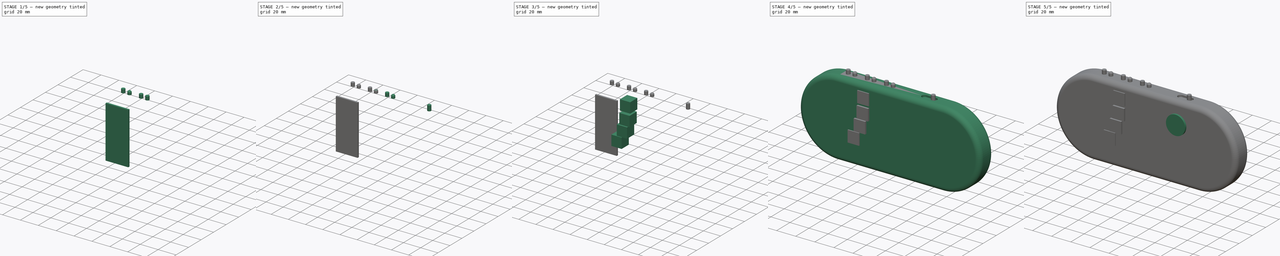
[diagram: build sequence overview — one tinted view per stage of 5, left to right]
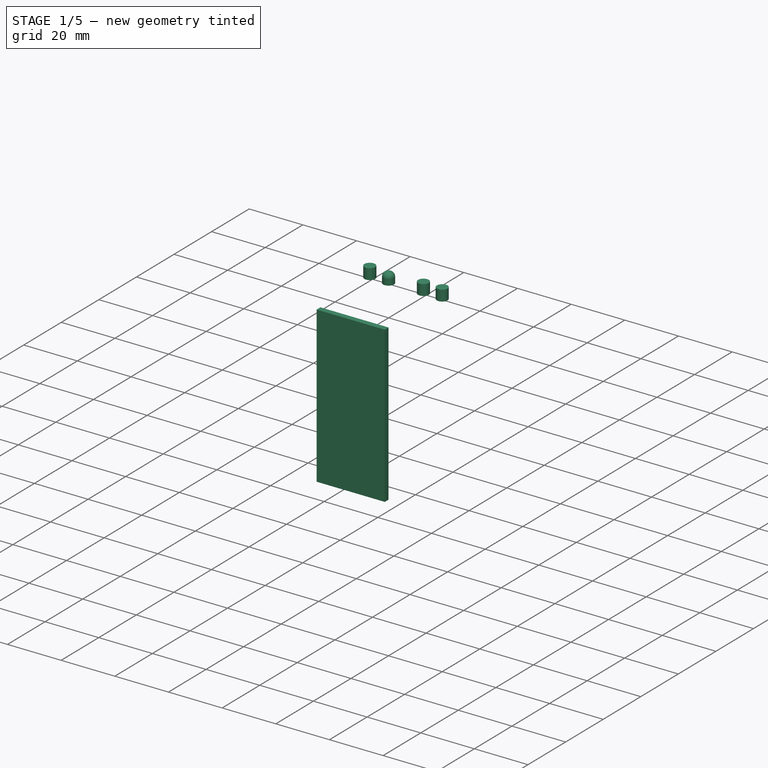
[diagram: stage 1 of 5 — iso view after this stage's code; geometry added in this stage tinted green]
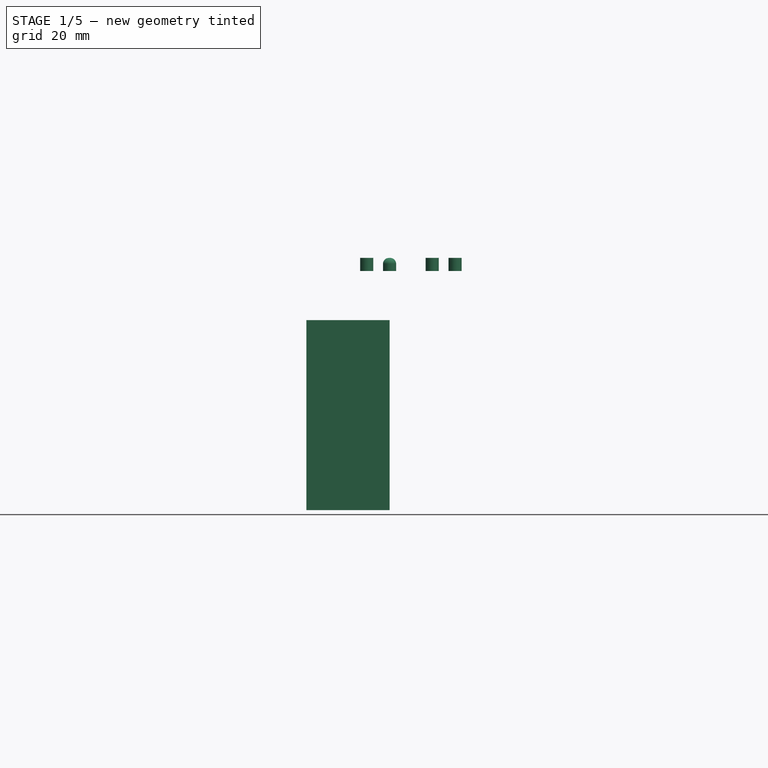
[diagram: stage 1 of 5 — front view after this stage's code; geometry added in this stage tinted green]
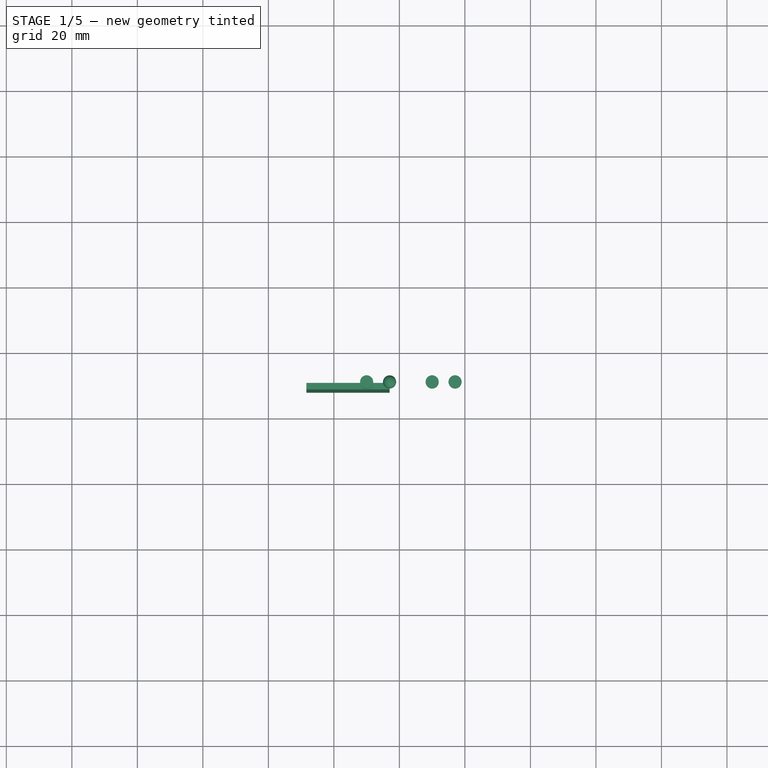
[diagram: stage 1 of 5 — top view after this stage's code; geometry added in this stage tinted green]
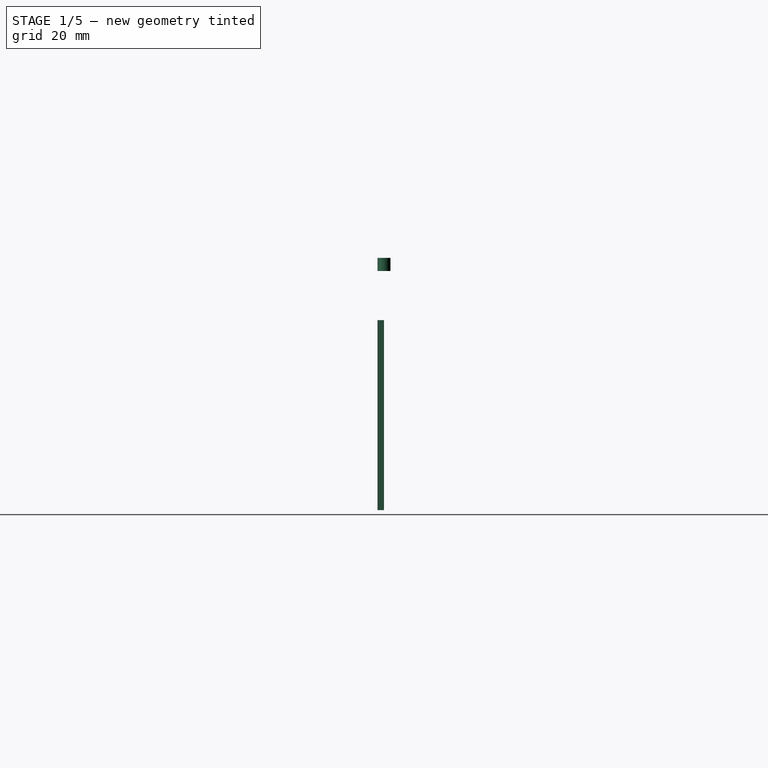
[diagram: stage 1 of 5 — right view after this stage's code; geometry added in this stage tinted green]
FCSTD DOCUMENT  (FreeCAD 0.16R6712 (Git))
Label: voctoplay 0.4
License: CreativeCommons Attribution
LicenseURL: http://creativecommons.org/licenses/by/4.0/
objects: Part::Box×13, Part::Cylinder×8, Part::MultiFuse×7, Part::Fillet×4, Sketcher::SketchObject×2, Part::Extrusion×1, PartDesign::Pocket×1
note: 37 computed .brp shape members not serialized (recipe doc carries the construction recipe); baked Part::Feature solids carry a one-line shape summary decoded from their .brp

FEATURE [Part::Cylinder] Cylinder007  label="Zylinder006"
  Angle = 360
  Height = 4
  Placement = pos=(-23,10,40) rot=(0,0,1;0rad)
  Radius = 2
FEATURE [Part::Cylinder] Cylinder008  label="Zylinder007"
  Angle = 360
  Height = 4
  Placement = pos=(-30,10,40) rot=(0,0,1;0rad)
  Radius = 2
FEATURE [Part::Cylinder] Cylinder009  label="Zylinder008"
  Angle = 360
  Height = 4
  Placement = pos=(-23,10,40) rot=(0,0,1;0rad)
  Radius = 2
FEATURE [Part::Fillet] Fillet005
  Base = -> Cylinder009
  Edges = 1 edges r=1.8: [Edge1]
FEATURE [Part::Cylinder] Cylinder010  label="Zylinder009"
  Angle = 360
  Height = 4
  Placement = pos=(-30,10,40) rot=(0,0,1;0rad)
  Radius = 2
FEATURE [Part::MultiFuse] Fusion004
  Placement = pos=(-20,0,0) rot=(0,0,1;0rad)
  Shapes = -> [Cylinder010,Fillet005]
FEATURE [Part::Box] Box013  label="LOLIN032"
  Height = 58
  Length = 25.4
  Placement = pos=(-68.4,8,-33) rot=(0,0,1;0rad)
  Width = 2
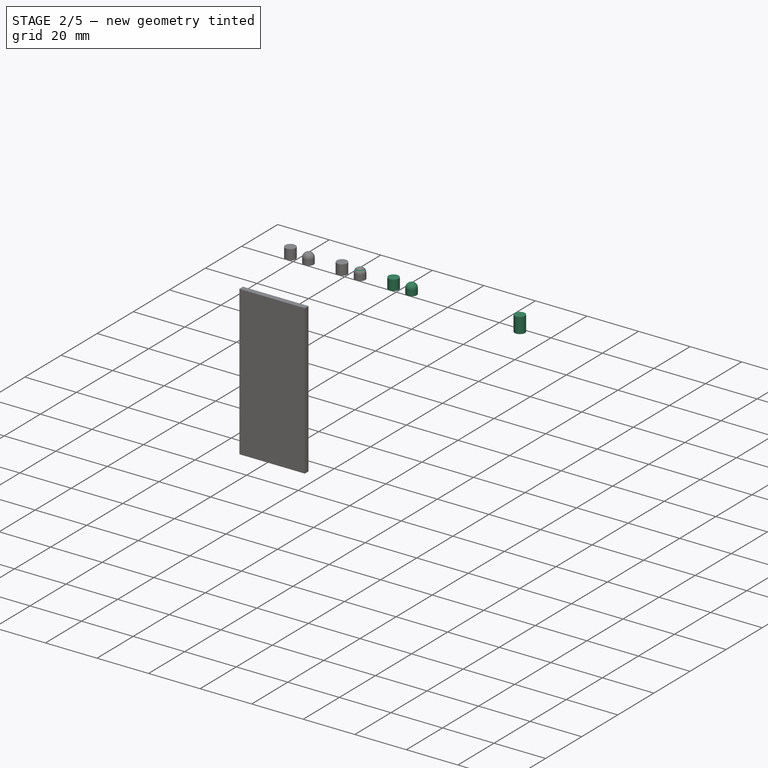
[diagram: stage 2 of 5 — iso view after this stage's code; geometry added in this stage tinted green]
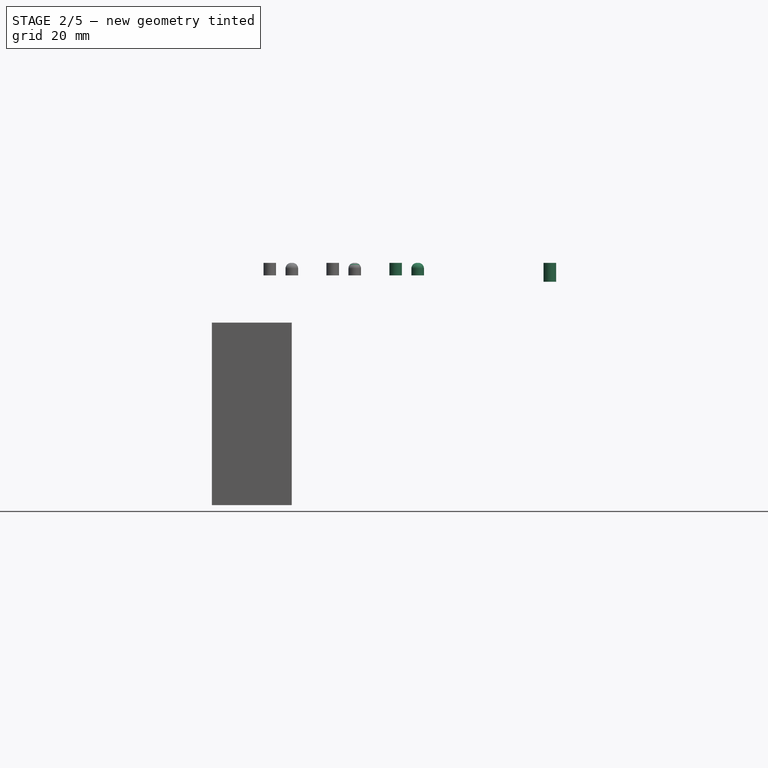
[diagram: stage 2 of 5 — front view after this stage's code; geometry added in this stage tinted green]
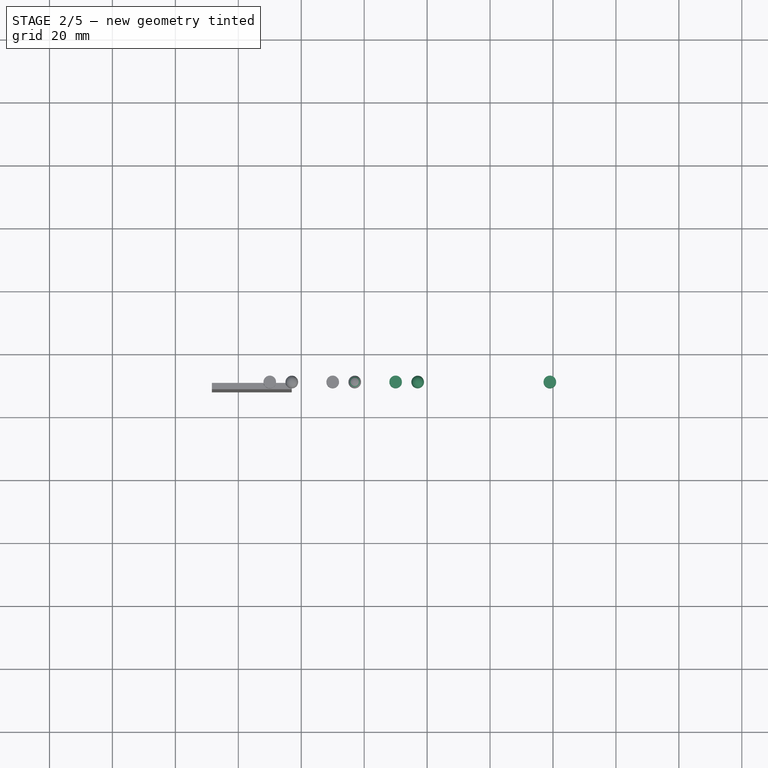
[diagram: stage 2 of 5 — top view after this stage's code; geometry added in this stage tinted green]
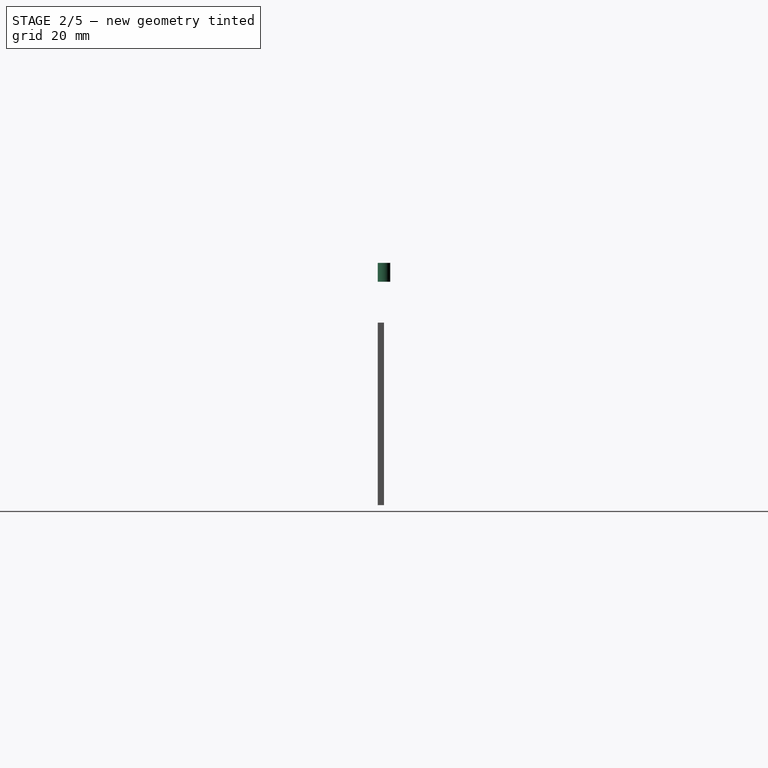
[diagram: stage 2 of 5 — right view after this stage's code; geometry added in this stage tinted green]
FEATURE [Part::Cylinder] Cylinder001  label="Zylinder"
  Angle = 360
  Height = 6
  Placement = pos=(39,10,38) rot=(0,0,1;0rad)
  Radius = 2
FEATURE [Part::Cylinder] Cylinder002  label="Zylinder001"
  Angle = 360
  Height = 4
  Placement = pos=(-23,10,40) rot=(0,0,1;0rad)
  Radius = 2
FEATURE [Part::Fillet] Fillet
  Base = -> Cylinder002
  Edges = 1 edges r=1.8: [Edge1]
FEATURE [Part::Cylinder] Cylinder006  label="Zylinder005"
  Angle = 360
  Height = 4
  Placement = pos=(-30,10,40) rot=(0,0,1;0rad)
  Radius = 2
FEATURE [Part::MultiFuse] Fusion002
  Shapes = -> [Cylinder006,Fillet]
FEATURE [Part::Fillet] Fillet004
  Base = -> Cylinder007
  Edges = 1 edges r=1.8: [Edge1]
FEATURE [Part::MultiFuse] Fusion003
  Placement = pos=(20,0,0) rot=(0,0,1;0rad)
  Shapes = -> [Cylinder008,Fillet004]
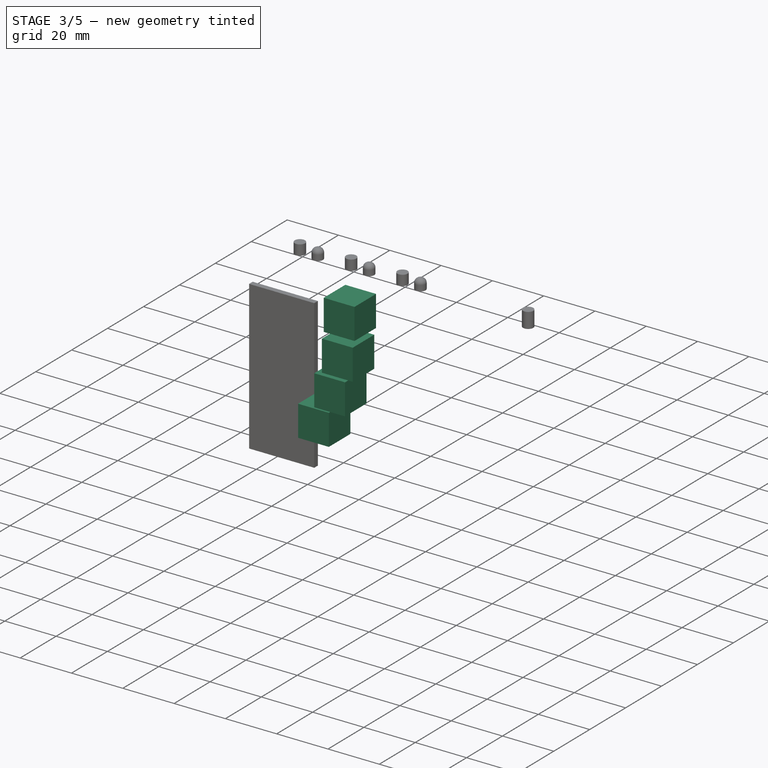
[diagram: stage 3 of 5 — iso view after this stage's code; geometry added in this stage tinted green]
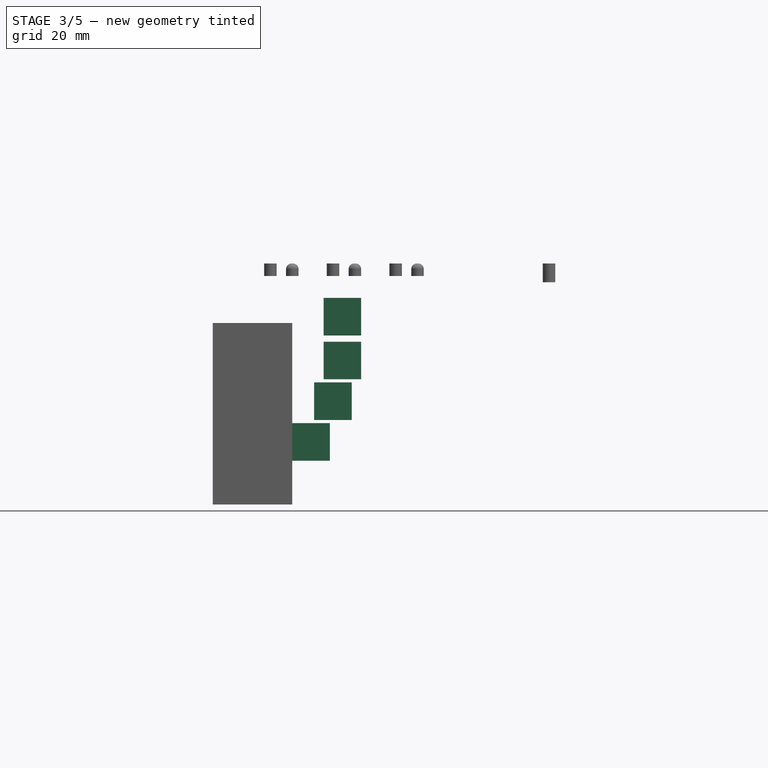
[diagram: stage 3 of 5 — front view after this stage's code; geometry added in this stage tinted green]
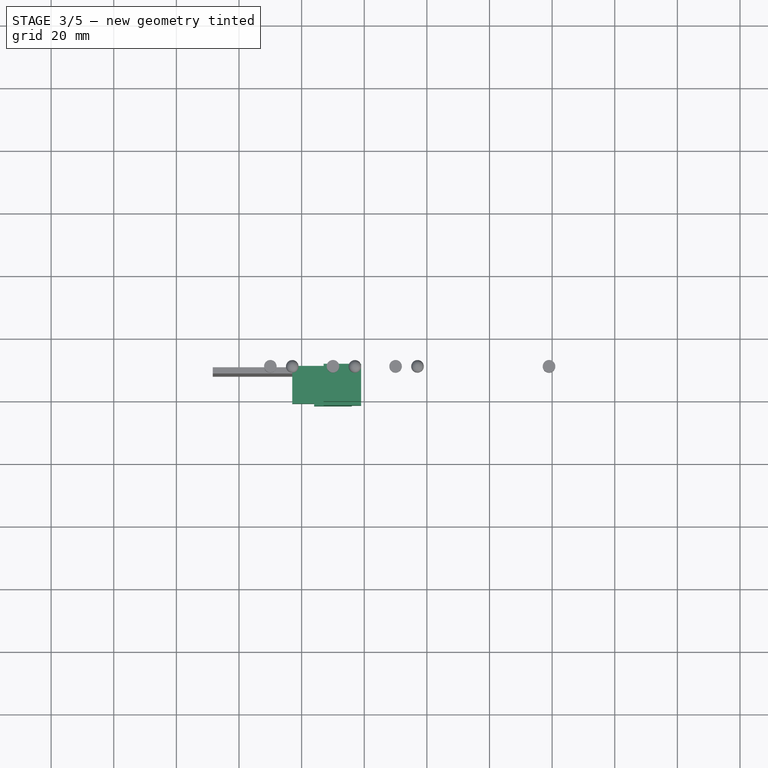
[diagram: stage 3 of 5 — top view after this stage's code; geometry added in this stage tinted green]
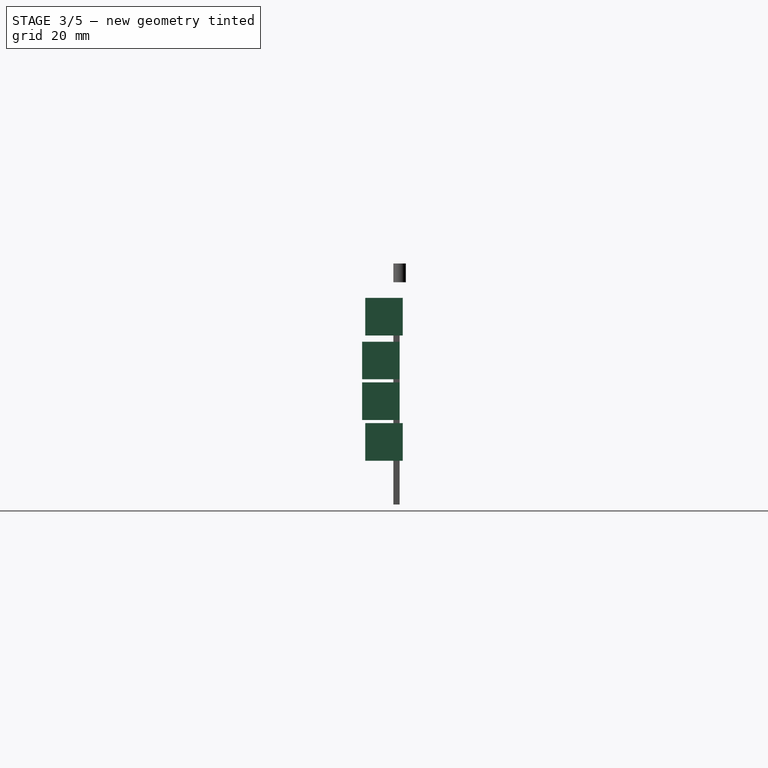
[diagram: stage 3 of 5 — right view after this stage's code; geometry added in this stage tinted green]
FEATURE [Part::Box] Box008  label="Würfel008"
  Height = 12
  Length = 12
  Placement = pos=(-33,-1,21) rot=(0,0,1;0rad)
  Width = 12
FEATURE [Part::Box] Box009  label="Würfel009"
  Height = 12
  Length = 12
  Placement = pos=(-33,-2,7) rot=(0,0,1;0rad)
  Width = 12
FEATURE [Part::Box] Box010  label="Würfel010"
  Height = 12
  Length = 12
  Placement = pos=(-36,-2,-6) rot=(0,0,1;0rad)
  Width = 12
FEATURE [Part::Box] Box011  label="Würfel011"
  Height = 12
  Length = 12
  Placement = pos=(-43,-1,-19) rot=(0,0,1;0rad)
  Width = 12
FEATURE [Part::MultiFuse] Fusion  label=" Fusion Composition Modes"
  Shapes = -> [Box011,Box008,Box009,Box010]
FEATURE [Part::MultiFuse] Fusion005  label="Fusion Controlls oben"
  Shapes = -> [Cylinder001,Fusion004,Fusion003,Fusion002]
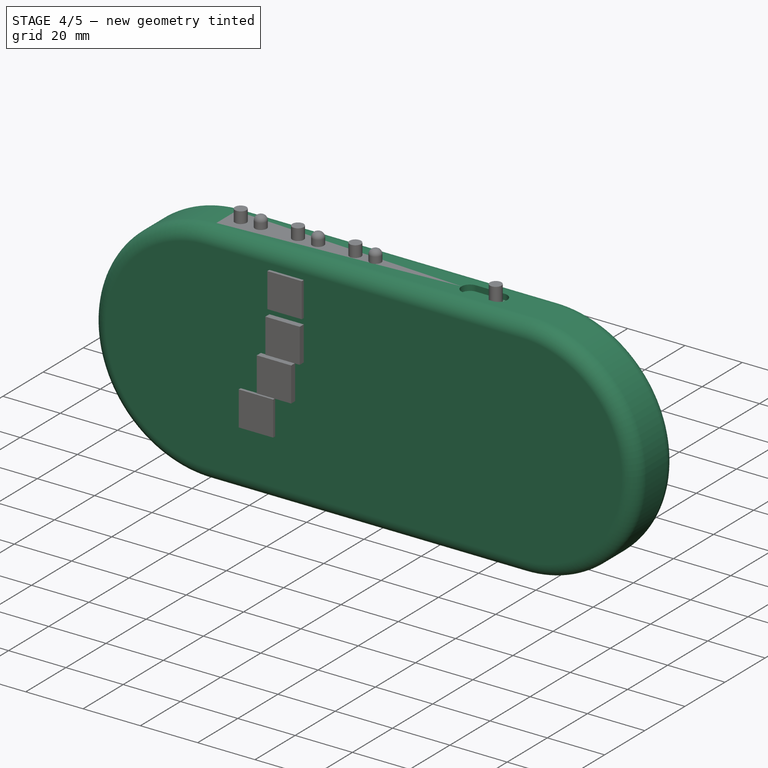
[diagram: stage 4 of 5 — iso view after this stage's code; geometry added in this stage tinted green]
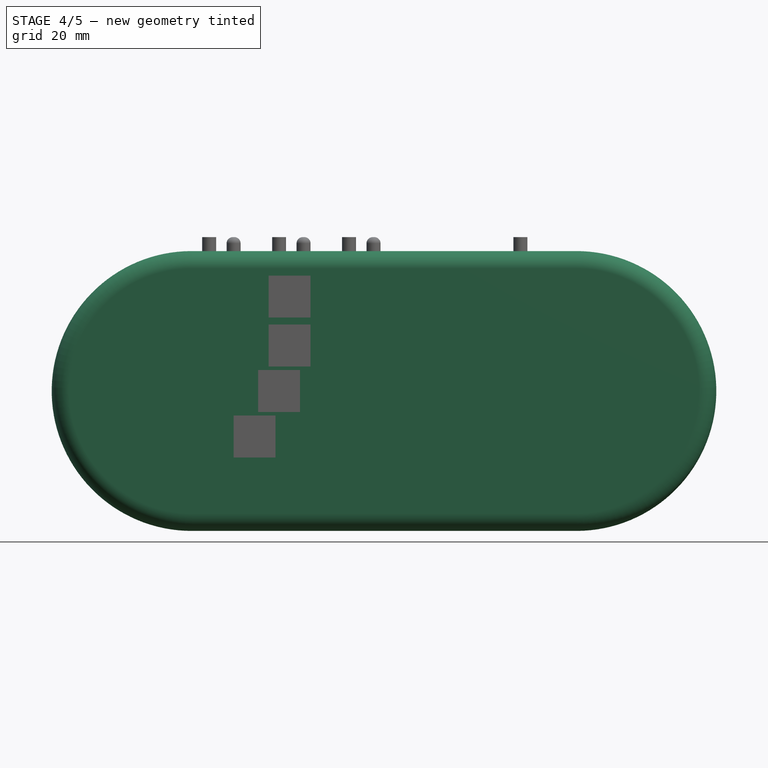
[diagram: stage 4 of 5 — front view after this stage's code; geometry added in this stage tinted green]
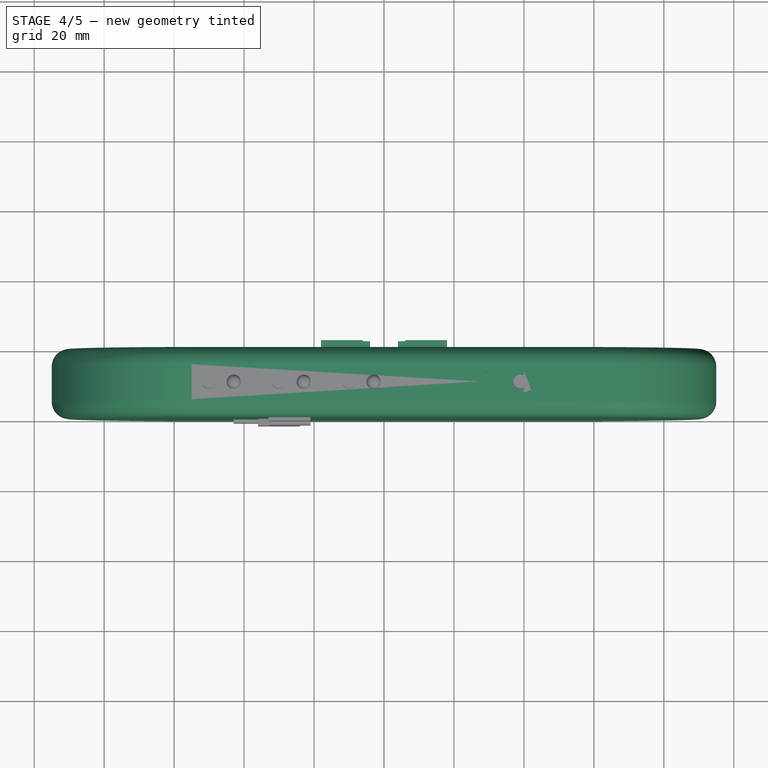
[diagram: stage 4 of 5 — top view after this stage's code; geometry added in this stage tinted green]
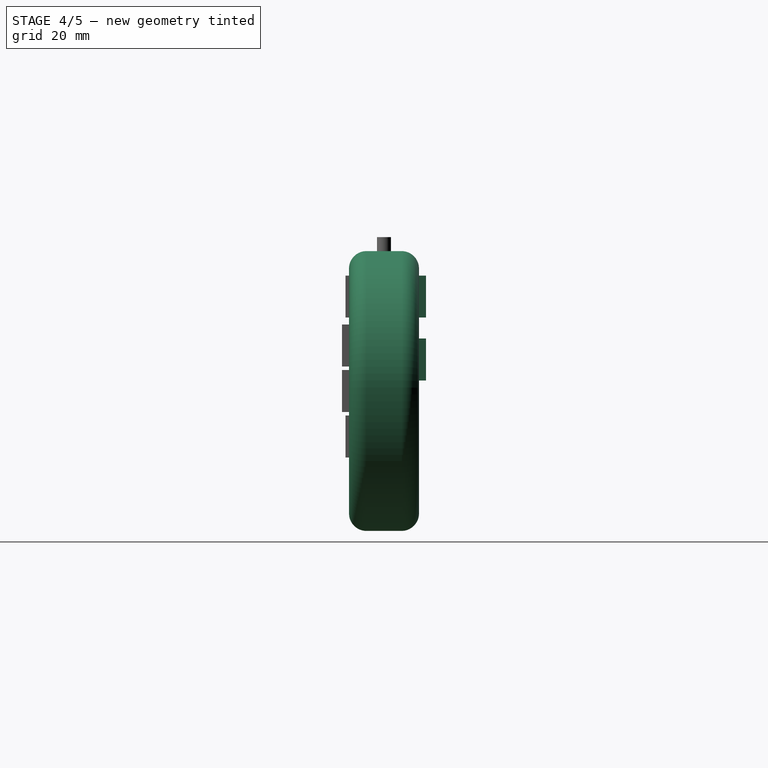
[diagram: stage 4 of 5 — right view after this stage's code; geometry added in this stage tinted green]
FEATURE [Sketcher::SketchObject] Sketch
  Placement = pos=(0,0,0) rot=(1,0,0;1.5708rad)
  sketch-geometry (4):
    g0: ArcOfCircle CenterX=-55 CenterY=0 CenterZ=0 NormalX=0 NormalY=0 NormalZ=1 Radius=40 StartAngle=1.5708 EndAngle=4.71239
    g1: ArcOfCircle CenterX=55 CenterY=0 CenterZ=0 NormalX=0 NormalY=0 NormalZ=1 Radius=40 StartAngle=4.71239 EndAngle=7.85398
    g2: LineSegment StartX=-55 StartY=-40 StartZ=0 EndX=55 EndY=-40 EndZ=0
    g3: LineSegment StartX=-55 StartY=40 StartZ=0 EndX=55 EndY=40 EndZ=0
  constraints (10):
    c: Tangent(g0,g3) = 1.5708
    c: Tangent(g0,g2) = -1.5708
    c: Tangent(g2,g1) = -1.5708
    c: Tangent(g3,g1) = 1.5708
    c: Horizontal(g2)
    c: Equal(g0,g1)
    c: PointOnObject(g0,g-1)
    c: Radius(g0) = 40
    c: DistanceX(g3,g3) = 110
    c: Symmetric(g1,g0,g-2)
FEATURE [Part::Extrusion] Extrude
  Base = -> Sketch
  Dir = (0,20,0)
  Solid = true
FEATURE [Part::Box] Box004  label="Würfel004"
  Height = 12
  Length = 12
  Placement = pos=(6,10,21) rot=(0,0,1;0rad)
  Width = 12
FEATURE [Part::Box] Box005  label="Würfel005"
  Height = 12
  Length = 12
  Placement = pos=(4,10,3) rot=(0,0,1;0rad)
  Width = 12
FEATURE [Part::Box] Box006  label="Würfel006"
  Height = 12
  Length = 12
  Placement = pos=(-16,10,3) rot=(0,0,1;0rad)
  Width = 12
FEATURE [Part::Box] Box007  label="Würfel007"
  Height = 12
  Length = 12
  Placement = pos=(-18,10,21) rot=(0,0,1;0rad)
  Width = 12
FEATURE [Sketcher::SketchObject] Sketch001
  Placement = pos=(0,0,40) rot=(0,0,1;0rad)
  Support = -> Extrude [Face4]
  sketch-geometry (4):
    g0: ArcOfCircle CenterX=30 CenterY=10 CenterZ=0 NormalX=0 NormalY=0 NormalZ=1 Radius=3 StartAngle=1.5708 EndAngle=4.71239
    g1: ArcOfCircle CenterX=40 CenterY=10 CenterZ=0 NormalX=0 NormalY=0 NormalZ=1 Radius=3 StartAngle=4.71239 EndAngle=7.85398
    g2: LineSegment StartX=30 StartY=7 StartZ=0 EndX=40 EndY=7 EndZ=0
    g3: LineSegment StartX=30 StartY=13 StartZ=0 EndX=40 EndY=13 EndZ=0
  constraints (10):
    c: Tangent(g0,g3) = 1.5708
    c: Tangent(g0,g2) = -1.5708
    c: Tangent(g2,g1) = -1.5708
    c: Tangent(g3,g1) = 1.5708
    c: Horizontal(g2)
    c: Equal(g0,g1)
    c: DistanceY(g-1,g1) = 10
    c: DistanceX(g3,g3) = 10
    c: Radius(g1) = 3
    c: DistanceX(g1,g-1) = -40
FEATURE [PartDesign::Pocket] Pocket
  Length = 2
  Sketch = -> Sketch001
  Type = 0
FEATURE [Part::Fillet] Fillet003  label="Fillet case"
  Base = -> Pocket
  Edges = 8 edges r=5: [Edge3,Edge4,Edge5,Edge6,Edge13,Edge14,Edge15,Edge16]
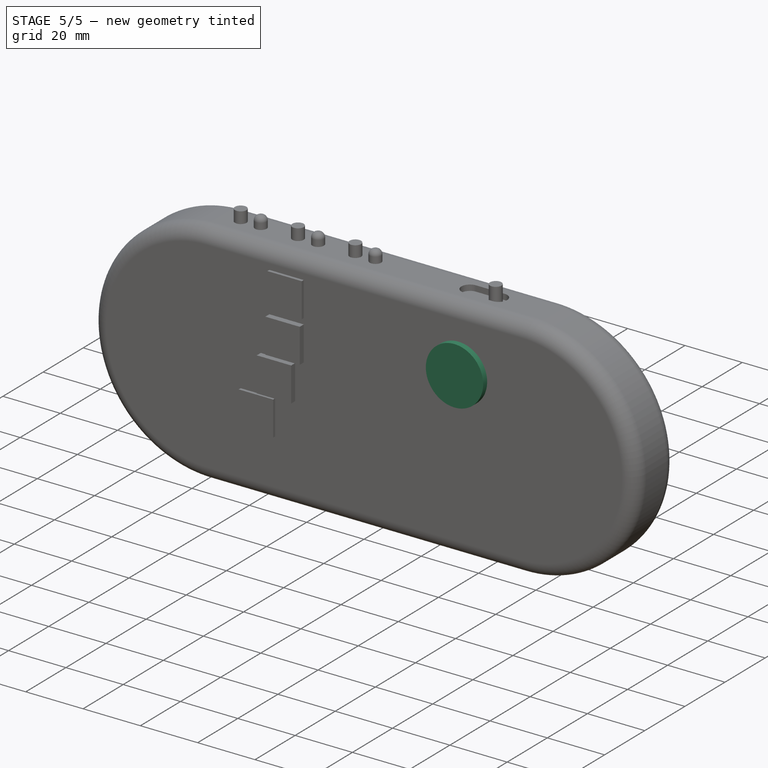
[diagram: stage 5 of 5 — iso view after this stage's code; geometry added in this stage tinted green]
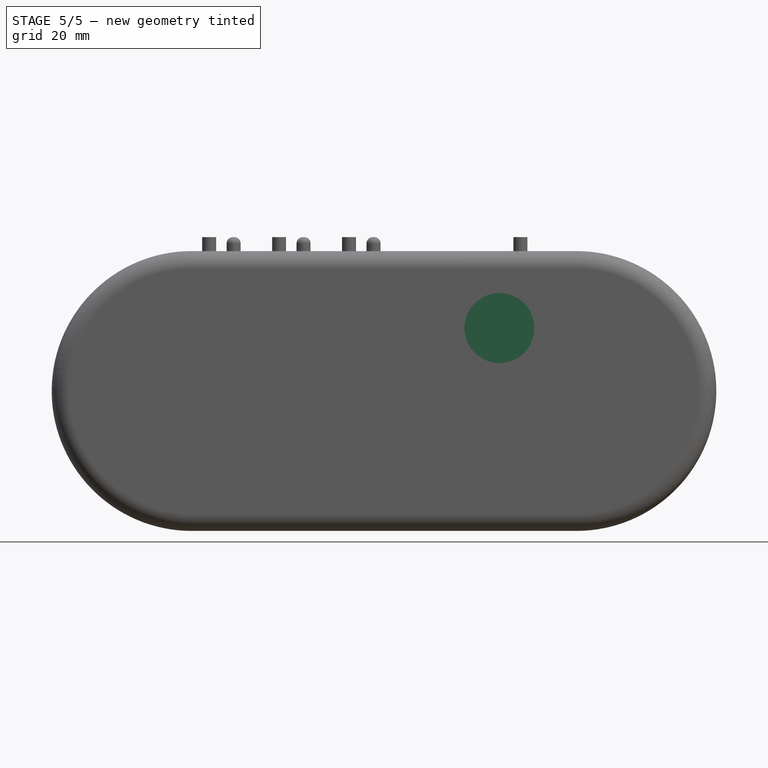
[diagram: stage 5 of 5 — front view after this stage's code; geometry added in this stage tinted green]
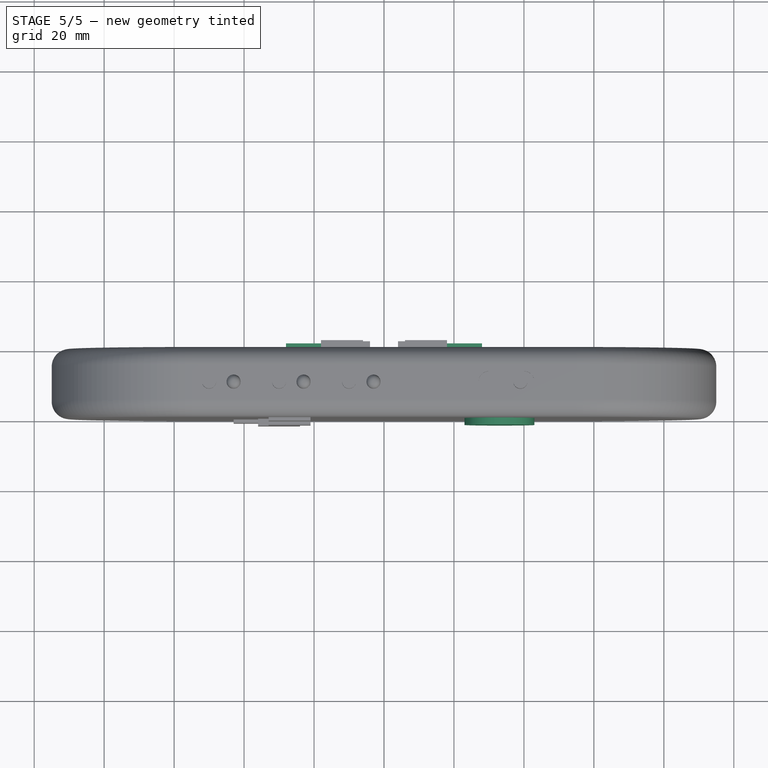
[diagram: stage 5 of 5 — top view after this stage's code; geometry added in this stage tinted green]
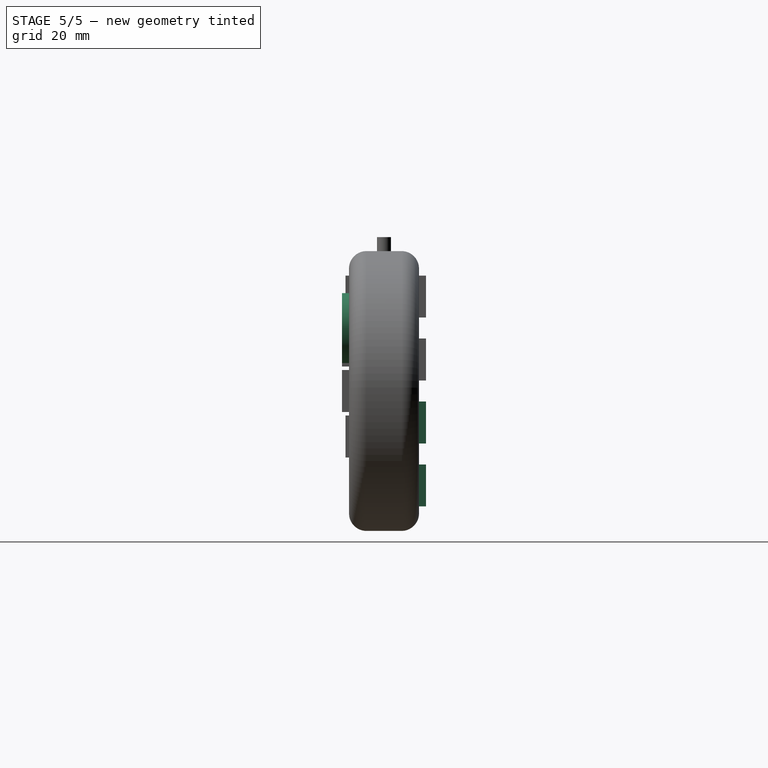
[diagram: stage 5 of 5 — right view after this stage's code; geometry added in this stage tinted green]
FEATURE [Part::Box] Box  label="Würfel"
  Height = 12
  Length = 12
  Placement = pos=(16,10,-33) rot=(0,0,1;0rad)
  Width = 12
FEATURE [Part::Box] Box001  label="Würfel001"
  Height = 12
  Length = 12
  Placement = pos=(6,10,-15) rot=(0,0,1;0rad)
  Width = 12
FEATURE [Part::Box] Box002  label="Würfel002"
  Height = 12
  Length = 12
  Placement = pos=(-28,10,-33) rot=(0,0,1;0rad)
  Width = 12
FEATURE [Part::Box] Box003  label="Würfel003"
  Height = 12
  Length = 12
  Placement = pos=(-18,10,-15) rot=(0,0,1;0rad)
  Width = 12
FEATURE [Part::Cylinder] Cylinder  label=" Zylinder Take"
  Angle = 360
  Height = 10
  Placement = pos=(33,8,18) rot=(1,0,0;1.5708rad)
  Radius = 10
FEATURE [Part::MultiFuse] Fusion001  label="Fusion Fingers"
  Shapes = -> [Box006,Box001,Box002,Box,Box007,Box004,Box005,Box003]
FEATURE [Part::MultiFuse] Fusion006
  Shapes = -> [Cylinder,Fusion005,Fillet003,Fusion,Fusion001]
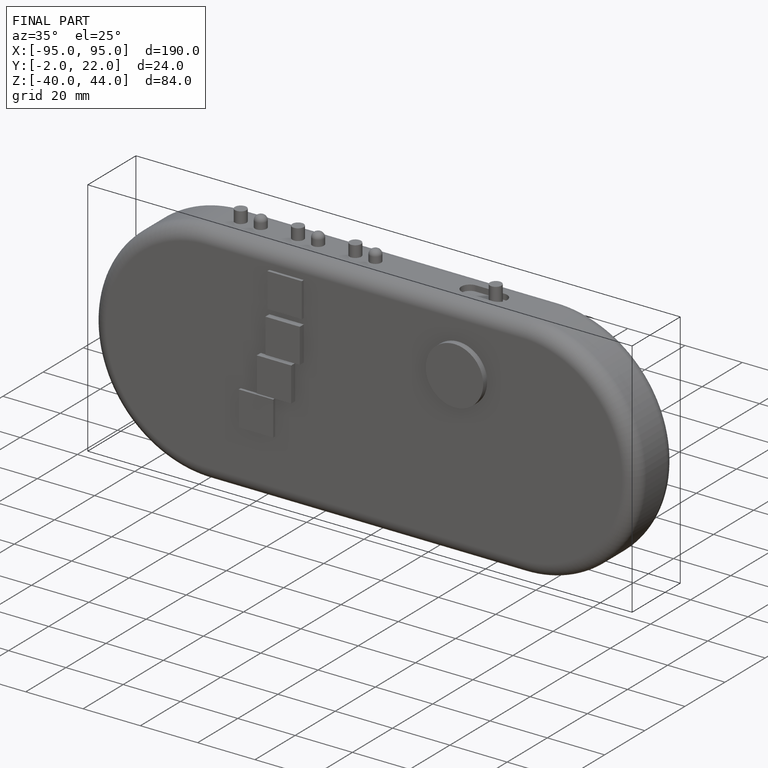
[diagram: finished part — iso view with bounding-box wireframe]
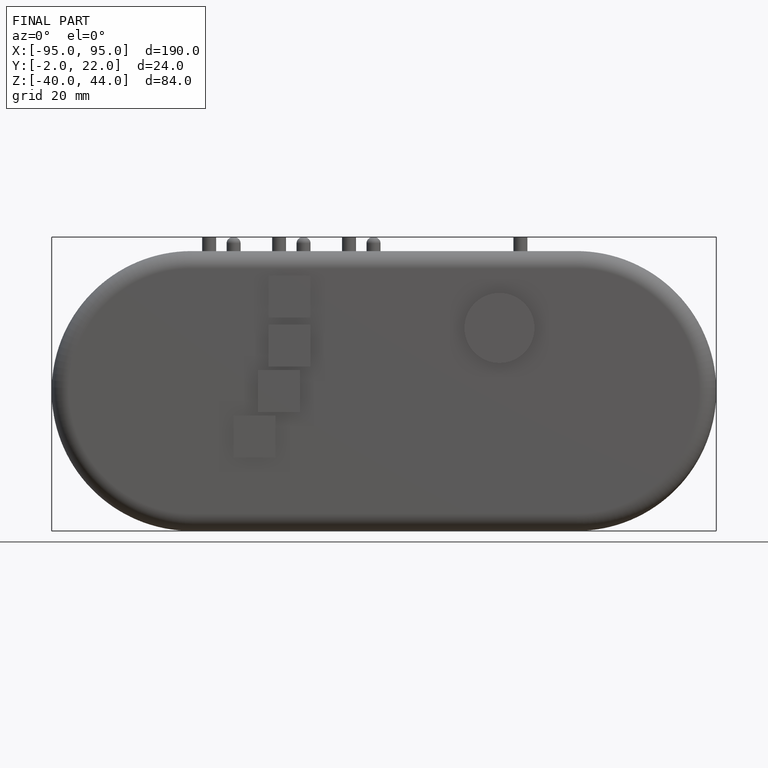
[diagram: finished part — front view with bounding-box wireframe]
